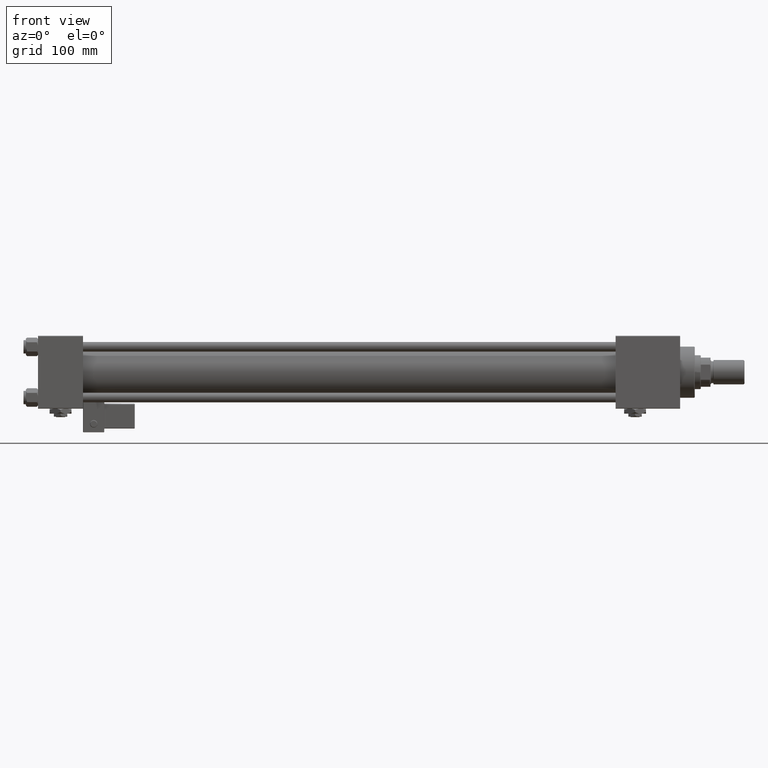
[diagram: clean part render]
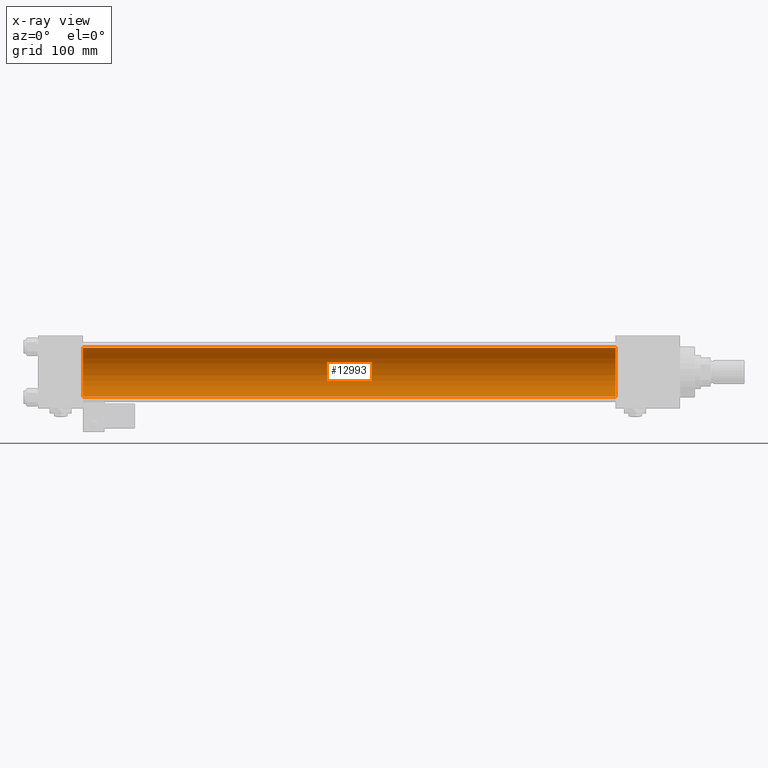
[diagram: x-ray — body ghosted, one internal face saturated and labeled with its STEP entity id]
A machine part, front view, then the same camera in x-ray: the body is ghosted and one INTERNAL B-rep face — a face not visible from any outside direction — is saturated and labeled: STEP entity #12993.
In plain terms, the highlighted cylindrical surface (edge-blend (fillet) strip) has radius 20 mm, axis along (-1, -0, -0).
Its self-contained STEP definition (entity closure, byte-faithful):
#2001 = AXIS2_PLACEMENT_3D ( 'NONE', #16982, #21433, #37295 ) ;
#4568 = FACE_OUTER_BOUND ( 'NONE', #26034, .T. ) ;
#5595 = VERTEX_POINT ( 'NONE', #29978 ) ;
#5843 = EDGE_CURVE ( 'NONE', #5595, #15029, #29644, .T. ) ;
#6884 = DIRECTION ( 'NONE',  ( 1.000000000000000000, 0.000000000000000000, 0.000000000000000000 ) ) ;
#10924 = VERTEX_POINT ( 'NONE', #52072 ) ;
#12308 = CARTESIAN_POINT ( 'NONE',  ( 37.00000000000000000, -2.602085213965210642E-15, 20.00000000000000000 ) ) ;
#12993 = ADVANCED_FACE ( 'NONE', ( #4568 ), #20412, .F. ) ;
#14802 = VERTEX_POINT ( 'NONE', #12308 ) ;
#15029 = VERTEX_POINT ( 'NONE', #38039 ) ;
#15761 = DIRECTION ( 'NONE',  ( -1.000000000000000000, -0.000000000000000000, -0.000000000000000000 ) ) ;
#16982 = CARTESIAN_POINT ( 'NONE',  ( 37.00000000000000000, -2.602085213965210642E-15, 0.000000000000000000 ) ) ;
#18105 = DIRECTION ( 'NONE',  ( -1.000000000000000000, -0.000000000000000000, -0.000000000000000000 ) ) ;
#18791 = VECTOR ( 'NONE', #15761, 1000.000000000000000 ) ;
#20212 = CARTESIAN_POINT ( 'NONE',  ( 475.0000000000000000, -2.602085213965210642E-15, 20.00000000000000000 ) ) ;
#20412 = CYLINDRICAL_SURFACE ( 'NONE', #50267, 20.00000000000000000 ) ;
#20508 = ORIENTED_EDGE ( 'NONE', *, *, #21639, .F. ) ;
#21433 = DIRECTION ( 'NONE',  ( 1.000000000000000000, 0.000000000000000000, 0.000000000000000000 ) ) ;
#21639 = EDGE_CURVE ( 'NONE', #5595, #10924, #48093, .T. ) ;
#22988 = ORIENTED_EDGE ( 'NONE', *, *, #25026, .T. ) ;
#25026 = EDGE_CURVE ( 'NONE', #15029, #14802, #41062, .T. ) ;
#25120 = CARTESIAN_POINT ( 'NONE',  ( 475.0000000000000000, -2.602085213965210642E-15, 0.000000000000000000 ) ) ;
#25653 = EDGE_CURVE ( 'NONE', #10924, #14802, #40008, .T. ) ;
#26034 = EDGE_LOOP ( 'NONE', ( #20508, #29788, #22988, #35832 ) ) ;
#29301 = DIRECTION ( 'NONE',  ( 0.000000000000000000, 0.000000000000000000, 1.000000000000000000 ) ) ;
#29644 = CIRCLE ( 'NONE', #40272, 20.00000000000000000 ) ;
#29788 = ORIENTED_EDGE ( 'NONE', *, *, #5843, .T. ) ;
#29978 = CARTESIAN_POINT ( 'NONE',  ( 475.0000000000000000, -1.527916156705042519E-16, -20.00000000000000000 ) ) ;
#30902 = CARTESIAN_POINT ( 'NONE',  ( 475.0000000000000000, -1.527916156705042519E-16, -20.00000000000000000 ) ) ;
#35832 = ORIENTED_EDGE ( 'NONE', *, *, #25653, .F. ) ;
#37295 = DIRECTION ( 'NONE',  ( 0.000000000000000000, 0.000000000000000000, -1.000000000000000000 ) ) ;
#38039 = CARTESIAN_POINT ( 'NONE',  ( 475.0000000000000000, -2.602085213965210642E-15, 20.00000000000000000 ) ) ;
#40008 = CIRCLE ( 'NONE', #2001, 20.00000000000000000 ) ;
#40272 = AXIS2_PLACEMENT_3D ( 'NONE', #45760, #6884, #46024 ) ;
#41062 = LINE ( 'NONE', #20212, #18791 ) ;
#41814 = DIRECTION ( 'NONE',  ( -1.000000000000000000, -0.000000000000000000, -0.000000000000000000 ) ) ;
#45760 = CARTESIAN_POINT ( 'NONE',  ( 475.0000000000000000, -2.602085213965210642E-15, 0.000000000000000000 ) ) ;
#46024 = DIRECTION ( 'NONE',  ( 0.000000000000000000, 0.000000000000000000, -1.000000000000000000 ) ) ;
#46184 = VECTOR ( 'NONE', #18105, 1000.000000000000000 ) ;
#48093 = LINE ( 'NONE', #30902, #46184 ) ;
#50267 = AXIS2_PLACEMENT_3D ( 'NONE', #25120, #41814, #29301 ) ;
#52072 = CARTESIAN_POINT ( 'NONE',  ( 37.00000000000000000, -1.527916156705042519E-16, -20.00000000000000000 ) ) ;